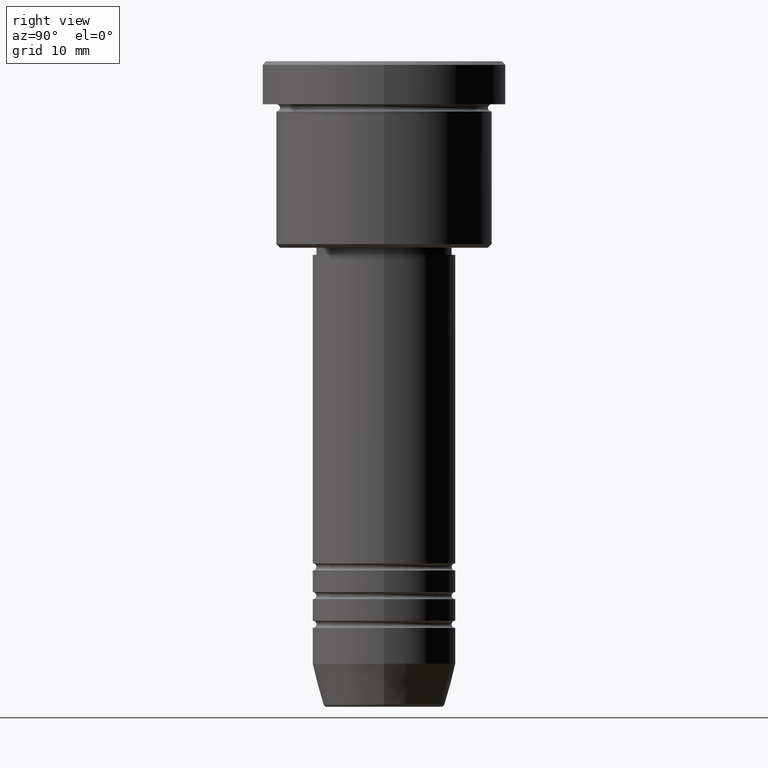
[diagram: clean part render]
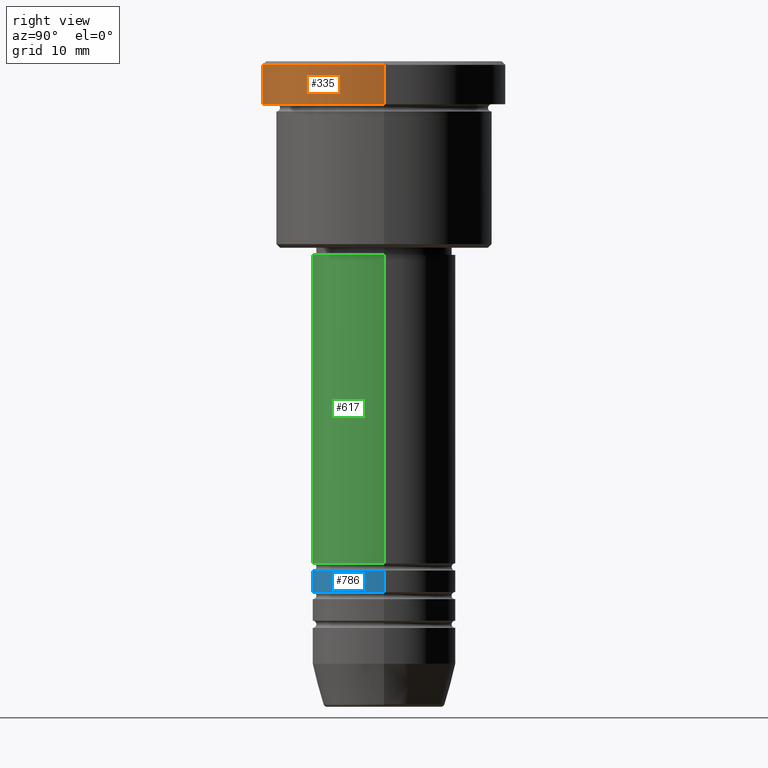
[diagram: same view with three faces highlighted in distinct colors, each labeled with its STEP entity id]
A machine part, right view with three faces highlighted in distinct colors.
Their STEP definitions:

[orange] entity #335 — the highlighted cylindrical surface (partial cylindrical patch) has radius 17 mm, axis along (-0, -0, 1).
#113 = CYLINDRICAL_SURFACE ( 'NONE', #722, 17.00000000000000000 ) ;
#132 = EDGE_CURVE ( 'NONE', #593, #185, #256, .T. ) ;
#165 = EDGE_CURVE ( 'NONE', #263, #185, #769, .T. ) ;
#185 = VERTEX_POINT ( 'NONE', #1145 ) ;
#219 = LINE ( 'NONE', #730, #468 ) ;
#239 = CARTESIAN_POINT ( 'NONE',  ( -17.00000000000000000, 2.081899558550500280E-15, -5.999999999999994671 ) ) ;
#256 = CIRCLE ( 'NONE', #857, 17.00000000000000000 ) ;
#263 = VERTEX_POINT ( 'NONE', #239 ) ;
#292 = DIRECTION ( 'NONE',  ( -0.000000000000000000, -0.000000000000000000, 1.000000000000000000 ) ) ;
#293 = ORIENTED_EDGE ( 'NONE', *, *, #132, .T. ) ;
#317 = CARTESIAN_POINT ( 'NONE',  ( 0.000000000000000000, 0.000000000000000000, -5.999999999999994671 ) ) ;
#318 = ORIENTED_EDGE ( 'NONE', *, *, #165, .F. ) ;
#327 = CARTESIAN_POINT ( 'NONE',  ( 0.000000000000000000, 0.000000000000000000, -0.5000000000000073275 ) ) ;
#335 = ADVANCED_FACE ( 'NONE', ( #400 ), #113, .T. ) ;
#351 = VECTOR ( 'NONE', #406, 1000.000000000000000 ) ;
#380 = CARTESIAN_POINT ( 'NONE',  ( 17.00000000000000000, 0.000000000000000000, -5.999999999999994671 ) ) ;
#400 = FACE_OUTER_BOUND ( 'NONE', #964, .T. ) ;
#406 = DIRECTION ( 'NONE',  ( -0.000000000000000000, -0.000000000000000000, 1.000000000000000000 ) ) ;
#429 = EDGE_CURVE ( 'NONE', #924, #593, #219, .T. ) ;
#438 = ORIENTED_EDGE ( 'NONE', *, *, #668, .T. ) ;
#468 = VECTOR ( 'NONE', #292, 1000.000000000000000 ) ;
#484 = CARTESIAN_POINT ( 'NONE',  ( 0.000000000000000000, 0.000000000000000000, 0.000000000000000000 ) ) ;
#548 = DIRECTION ( 'NONE',  ( 1.000000000000000000, 0.000000000000000000, 0.000000000000000000 ) ) ;
#576 = CARTESIAN_POINT ( 'NONE',  ( 17.00000000000000000, 0.000000000000000000, -0.5000000000000073275 ) ) ;
#593 = VERTEX_POINT ( 'NONE', #576 ) ;
#653 = DIRECTION ( 'NONE',  ( -0.000000000000000000, -0.000000000000000000, 1.000000000000000000 ) ) ;
#668 = EDGE_CURVE ( 'NONE', #263, #924, #794, .T. ) ;
#722 = AXIS2_PLACEMENT_3D ( 'NONE', #484, #830, #1029 ) ;
#730 = CARTESIAN_POINT ( 'NONE',  ( 17.00000000000000000, 0.000000000000000000, 0.000000000000000000 ) ) ;
#737 = AXIS2_PLACEMENT_3D ( 'NONE', #317, #653, #957 ) ;
#764 = CARTESIAN_POINT ( 'NONE',  ( -17.00000000000000000, 2.081899558550500280E-15, 0.000000000000000000 ) ) ;
#769 = LINE ( 'NONE', #764, #351 ) ;
#794 = CIRCLE ( 'NONE', #737, 17.00000000000000000 ) ;
#807 = ORIENTED_EDGE ( 'NONE', *, *, #429, .T. ) ;
#830 = DIRECTION ( 'NONE',  ( -0.000000000000000000, -0.000000000000000000, 1.000000000000000000 ) ) ;
#857 = AXIS2_PLACEMENT_3D ( 'NONE', #327, #1024, #548 ) ;
#924 = VERTEX_POINT ( 'NONE', #380 ) ;
#957 = DIRECTION ( 'NONE',  ( 1.000000000000000000, 0.000000000000000000, 0.000000000000000000 ) ) ;
#964 = EDGE_LOOP ( 'NONE', ( #318, #438, #807, #293 ) ) ;
#1024 = DIRECTION ( 'NONE',  ( 0.000000000000000000, 0.000000000000000000, -1.000000000000000000 ) ) ;
#1029 = DIRECTION ( 'NONE',  ( 1.000000000000000000, 0.000000000000000000, 0.000000000000000000 ) ) ;
#1145 = CARTESIAN_POINT ( 'NONE',  ( -17.00000000000000000, 2.081899558550500280E-15, -0.5000000000000073275 ) ) ;

[blue] entity #786 — the highlighted cylindrical surface (partial cylindrical patch) has radius 10 mm, axis along (-0, -0, 1).
#9 = DIRECTION ( 'NONE',  ( -0.000000000000000000, -0.000000000000000000, 1.000000000000000000 ) ) ;
#23 = CARTESIAN_POINT ( 'NONE',  ( 10.00000000000000178, 0.000000000000000000, 0.000000000000000000 ) ) ;
#29 = CARTESIAN_POINT ( 'NONE',  ( 0.000000000000000000, 0.000000000000000000, -73.99999999999998579 ) ) ;
#44 = ORIENTED_EDGE ( 'NONE', *, *, #997, .F. ) ;
#54 = DIRECTION ( 'NONE',  ( 1.000000000000000000, 0.000000000000000000, 0.000000000000000000 ) ) ;
#141 = VECTOR ( 'NONE', #307, 1000.000000000000000 ) ;
#201 = VERTEX_POINT ( 'NONE', #925 ) ;
#217 = DIRECTION ( 'NONE',  ( -0.000000000000000000, -0.000000000000000000, 1.000000000000000000 ) ) ;
#267 = ORIENTED_EDGE ( 'NONE', *, *, #921, .T. ) ;
#269 = AXIS2_PLACEMENT_3D ( 'NONE', #314, #693, #54 ) ;
#307 = DIRECTION ( 'NONE',  ( -0.000000000000000000, -0.000000000000000000, 1.000000000000000000 ) ) ;
#314 = CARTESIAN_POINT ( 'NONE',  ( 0.000000000000000000, 0.000000000000000000, -70.99999999999998579 ) ) ;
#348 = CIRCLE ( 'NONE', #1019, 10.00000000000000178 ) ;
#350 = CARTESIAN_POINT ( 'NONE',  ( 10.00000000000000000, 0.000000000000000000, -70.99999999999998579 ) ) ;
#353 = CARTESIAN_POINT ( 'NONE',  ( -10.00000000000000000, 1.224646799147353256E-15, -70.99999999999998579 ) ) ;
#403 = CARTESIAN_POINT ( 'NONE',  ( -10.00000000000000178, 1.224646799147353454E-15, -73.99999999999998579 ) ) ;
#408 = AXIS2_PLACEMENT_3D ( 'NONE', #796, #541, #1176 ) ;
#444 = CYLINDRICAL_SURFACE ( 'NONE', #408, 10.00000000000000178 ) ;
#471 = EDGE_CURVE ( 'NONE', #795, #1175, #995, .T. ) ;
#541 = DIRECTION ( 'NONE',  ( -0.000000000000000000, -0.000000000000000000, 1.000000000000000000 ) ) ;
#557 = LINE ( 'NONE', #23, #698 ) ;
#587 = EDGE_CURVE ( 'NONE', #1036, #201, #348, .T. ) ;
#693 = DIRECTION ( 'NONE',  ( -0.000000000000000000, -0.000000000000000000, 1.000000000000000000 ) ) ;
#698 = VECTOR ( 'NONE', #9, 1000.000000000000000 ) ;
#742 = ORIENTED_EDGE ( 'NONE', *, *, #471, .F. ) ;
#786 = ADVANCED_FACE ( 'NONE', ( #887 ), #444, .T. ) ;
#795 = VERTEX_POINT ( 'NONE', #353 ) ;
#796 = CARTESIAN_POINT ( 'NONE',  ( 0.000000000000000000, 0.000000000000000000, 0.000000000000000000 ) ) ;
#844 = EDGE_LOOP ( 'NONE', ( #44, #860, #267, #742 ) ) ;
#860 = ORIENTED_EDGE ( 'NONE', *, *, #587, .T. ) ;
#887 = FACE_OUTER_BOUND ( 'NONE', #844, .T. ) ;
#921 = EDGE_CURVE ( 'NONE', #201, #1175, #557, .T. ) ;
#925 = CARTESIAN_POINT ( 'NONE',  ( 10.00000000000000178, 0.000000000000000000, -73.99999999999998579 ) ) ;
#947 = CARTESIAN_POINT ( 'NONE',  ( -10.00000000000000178, 1.224646799147353454E-15, 0.000000000000000000 ) ) ;
#955 = LINE ( 'NONE', #947, #141 ) ;
#995 = CIRCLE ( 'NONE', #269, 10.00000000000000000 ) ;
#997 = EDGE_CURVE ( 'NONE', #1036, #795, #955, .T. ) ;
#1019 = AXIS2_PLACEMENT_3D ( 'NONE', #29, #217, #1031 ) ;
#1031 = DIRECTION ( 'NONE',  ( 1.000000000000000000, 0.000000000000000000, 0.000000000000000000 ) ) ;
#1036 = VERTEX_POINT ( 'NONE', #403 ) ;
#1175 = VERTEX_POINT ( 'NONE', #350 ) ;
#1176 = DIRECTION ( 'NONE',  ( 1.000000000000000000, 0.000000000000000000, 0.000000000000000000 ) ) ;

[green] entity #617 — the highlighted cylindrical surface (partial cylindrical patch) has radius 10 mm, axis along (-0, -0, 1).
#55 = ORIENTED_EDGE ( 'NONE', *, *, #1053, .F. ) ;
#66 = CYLINDRICAL_SURFACE ( 'NONE', #249, 10.00000000000000000 ) ;
#90 = DIRECTION ( 'NONE',  ( 1.000000000000000000, 0.000000000000000000, 0.000000000000000000 ) ) ;
#158 = FACE_OUTER_BOUND ( 'NONE', #987, .T. ) ;
#168 = CARTESIAN_POINT ( 'NONE',  ( 10.00000000000000000, 0.000000000000000000, 0.000000000000000000 ) ) ;
#180 = DIRECTION ( 'NONE',  ( -0.000000000000000000, -0.000000000000000000, 1.000000000000000000 ) ) ;
#249 = AXIS2_PLACEMENT_3D ( 'NONE', #890, #1131, #1142 ) ;
#252 = VECTOR ( 'NONE', #752, 1000.000000000000000 ) ;
#264 = CARTESIAN_POINT ( 'NONE',  ( 0.000000000000000000, 0.000000000000000000, -69.99999999999998579 ) ) ;
#284 = DIRECTION ( 'NONE',  ( -0.000000000000000000, -0.000000000000000000, 1.000000000000000000 ) ) ;
#323 = CARTESIAN_POINT ( 'NONE',  ( -10.00000000000000178, 1.224646799147353454E-15, -69.99999999999998579 ) ) ;
#447 = AXIS2_PLACEMENT_3D ( 'NONE', #264, #180, #90 ) ;
#454 = VERTEX_POINT ( 'NONE', #323 ) ;
#466 = CARTESIAN_POINT ( 'NONE',  ( 0.000000000000000000, 0.000000000000000000, -26.99999999999999645 ) ) ;
#488 = AXIS2_PLACEMENT_3D ( 'NONE', #466, #284, #828 ) ;
#490 = ORIENTED_EDGE ( 'NONE', *, *, #885, .F. ) ;
#512 = ORIENTED_EDGE ( 'NONE', *, *, #774, .T. ) ;
#590 = CIRCLE ( 'NONE', #488, 9.999999999999998224 ) ;
#617 = ADVANCED_FACE ( 'NONE', ( #158 ), #66, .T. ) ;
#660 = CARTESIAN_POINT ( 'NONE',  ( -9.999999999999998224, 1.224646799147353256E-15, -26.99999999999999645 ) ) ;
#666 = CARTESIAN_POINT ( 'NONE',  ( 10.00000000000000178, 0.000000000000000000, -69.99999999999998579 ) ) ;
#723 = EDGE_CURVE ( 'NONE', #454, #1005, #776, .T. ) ;
#741 = CARTESIAN_POINT ( 'NONE',  ( 9.999999999999998224, 0.000000000000000000, -26.99999999999999645 ) ) ;
#752 = DIRECTION ( 'NONE',  ( -0.000000000000000000, -0.000000000000000000, 1.000000000000000000 ) ) ;
#774 = EDGE_CURVE ( 'NONE', #1005, #903, #804, .T. ) ;
#776 = CIRCLE ( 'NONE', #447, 10.00000000000000178 ) ;
#804 = LINE ( 'NONE', #168, #1114 ) ;
#828 = DIRECTION ( 'NONE',  ( 1.000000000000000000, 0.000000000000000000, 0.000000000000000000 ) ) ;
#859 = LINE ( 'NONE', #1049, #252 ) ;
#885 = EDGE_CURVE ( 'NONE', #1085, #903, #590, .T. ) ;
#890 = CARTESIAN_POINT ( 'NONE',  ( 0.000000000000000000, 0.000000000000000000, 0.000000000000000000 ) ) ;
#903 = VERTEX_POINT ( 'NONE', #741 ) ;
#912 = ORIENTED_EDGE ( 'NONE', *, *, #723, .T. ) ;
#987 = EDGE_LOOP ( 'NONE', ( #55, #912, #512, #490 ) ) ;
#1005 = VERTEX_POINT ( 'NONE', #666 ) ;
#1049 = CARTESIAN_POINT ( 'NONE',  ( -10.00000000000000000, 1.224646799147353256E-15, 0.000000000000000000 ) ) ;
#1053 = EDGE_CURVE ( 'NONE', #454, #1085, #859, .T. ) ;
#1076 = DIRECTION ( 'NONE',  ( -0.000000000000000000, -0.000000000000000000, 1.000000000000000000 ) ) ;
#1085 = VERTEX_POINT ( 'NONE', #660 ) ;
#1114 = VECTOR ( 'NONE', #1076, 1000.000000000000000 ) ;
#1131 = DIRECTION ( 'NONE',  ( -0.000000000000000000, -0.000000000000000000, 1.000000000000000000 ) ) ;
#1142 = DIRECTION ( 'NONE',  ( 1.000000000000000000, 0.000000000000000000, 0.000000000000000000 ) ) ;